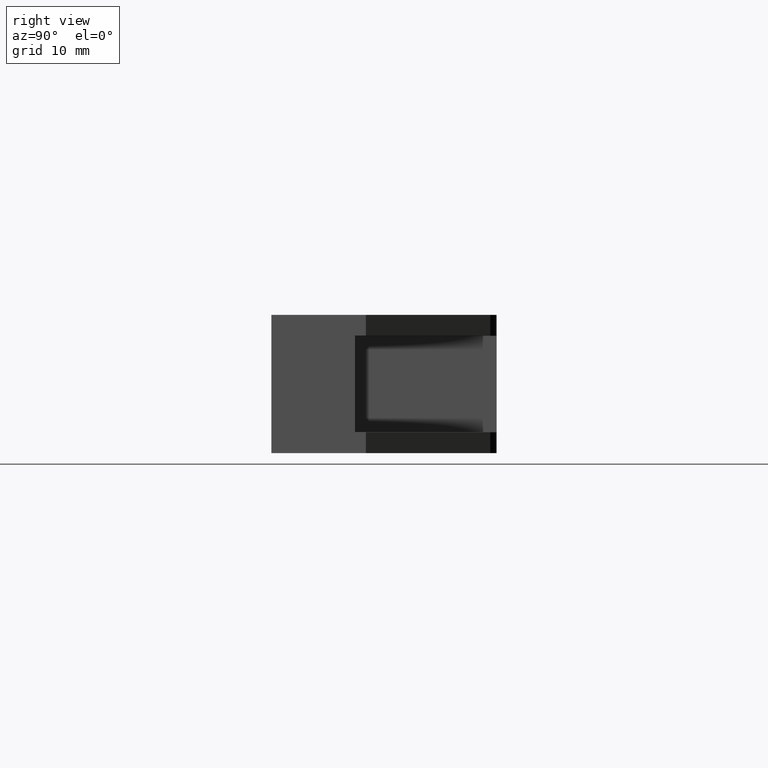
[diagram: clean part render]
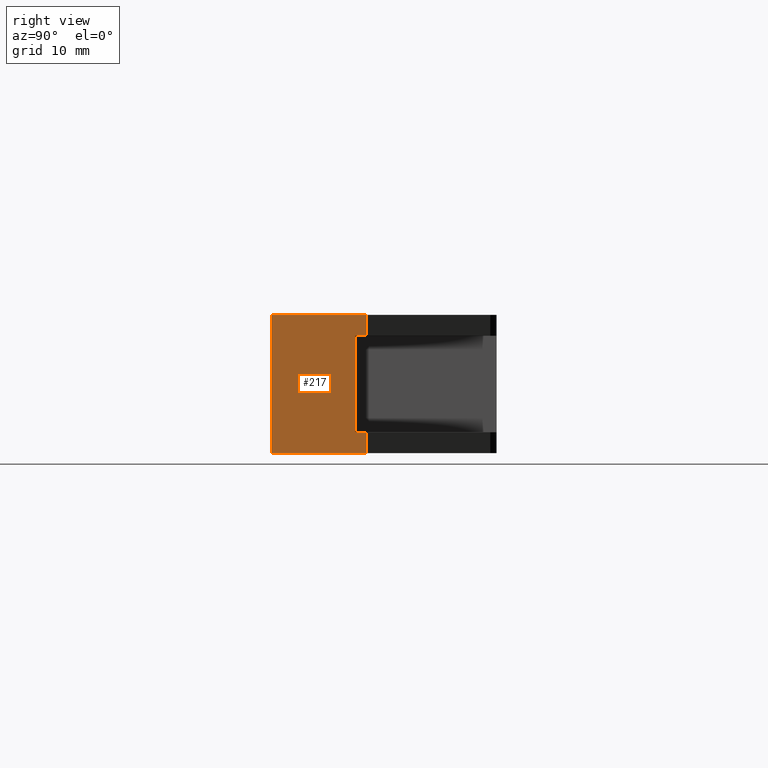
[diagram: same view with one face highlighted and labeled with its STEP entity id]
A machine part, right view. The second image highlights one B-rep face of the part: STEP entity #217.
In plain terms, the highlighted planar face has unit normal (-1, 0, 0).
Its self-contained STEP definition (entity closure, byte-faithful):
#191 = AXIS2_PLACEMENT_3D ( 'NONE', #474, #473, #472 ) ;
#217 = ADVANCED_FACE ( 'NONE', ( #540 ), #476, .F. ) ;
#230 = EDGE_CURVE ( 'NONE', #1214, #1191, #851, .T. ) ;
#279 = DIRECTION ( 'NONE',  ( -0.0000000000000000000, -0.0000000000000000000, 1.000000000000000000 ) ) ;
#280 = CARTESIAN_POINT ( 'NONE',  ( 107.0000000000000000, 0.0000000000000000000, -10.75000000000000000 ) ) ;
#281 = DIRECTION ( 'NONE',  ( -0.0000000000000000000, -1.000000000000000000, -0.0000000000000000000 ) ) ;
#282 = CARTESIAN_POINT ( 'NONE',  ( 107.0000000000000000, 17.50000000000000000, -21.50000000000000000 ) ) ;
#283 = DIRECTION ( 'NONE',  ( -0.0000000000000000000, -1.000000000000000000, -0.0000000000000000000 ) ) ;
#307 = EDGE_CURVE ( 'NONE', #1186, #1189, #969, .T. ) ;
#317 = EDGE_CURVE ( 'NONE', #1183, #1186, #785, .T. ) ;
#356 = DIRECTION ( 'NONE',  ( -0.0000000000000000000, -0.0000000000000000000, -1.000000000000000000 ) ) ;
#357 = DIRECTION ( 'NONE',  ( 0.0000000000000000000, 1.000000000000000000, 0.0000000000000000000 ) ) ;
#358 = CARTESIAN_POINT ( 'NONE',  ( 107.0000000000000100, 7.346153846000000900, -18.24999999350000500 ) ) ;
#359 = CARTESIAN_POINT ( 'NONE',  ( 107.0000000000000000, 14.69230769200000000, -10.75000000000000000 ) ) ;
#372 = CARTESIAN_POINT ( 'NONE',  ( 107.0000000000000000, 17.50000000000000000, 0.0000000000000000000 ) ) ;
#375 = DIRECTION ( 'NONE',  ( 0.0000000000000000000, 0.0000000000000000000, 1.000000000000000000 ) ) ;
#376 = CARTESIAN_POINT ( 'NONE',  ( 107.0000000000000000, 14.69230769200000000, -1.625000000000000200 ) ) ;
#384 = DIRECTION ( 'NONE',  ( -0.0000000000000000000, -0.0000000000000000000, -1.000000000000000000 ) ) ;
#385 = CARTESIAN_POINT ( 'NONE',  ( 107.0000000000000000, 13.00000000080467400, -10.75000000000000200 ) ) ;
#420 = DIRECTION ( 'NONE',  ( -0.0000000000000000000, -1.000000000000000000, -0.0000000000000000000 ) ) ;
#421 = CARTESIAN_POINT ( 'NONE',  ( 107.0000000000000100, 7.346153846000000000, -3.250000006499999600 ) ) ;
#472 = DIRECTION ( 'NONE',  ( 0.0000000000000000000, 0.0000000000000000000, 1.000000000000000000 ) ) ;
#473 = DIRECTION ( 'NONE',  ( -1.000000000000000000, 0.0000000000000000000, 0.0000000000000000000 ) ) ;
#474 = CARTESIAN_POINT ( 'NONE',  ( 107.0000000000000000, 0.0000000000000000000, -21.50000000000000000 ) ) ;
#476 = PLANE ( 'NONE',  #191 ) ;
#540 = FACE_OUTER_BOUND ( 'NONE', #624, .T. ) ;
#624 = EDGE_LOOP ( 'NONE', ( #787, #786, #777, #774, #773, #771, #770, #769 ) ) ;
#769 = ORIENTED_EDGE ( 'NONE', *, *, #317, .F. ) ;
#770 = ORIENTED_EDGE ( 'NONE', *, *, #307, .F. ) ;
#771 = ORIENTED_EDGE ( 'NONE', *, *, #1162, .F. ) ;
#773 = ORIENTED_EDGE ( 'NONE', *, *, #1163, .F. ) ;
#774 = ORIENTED_EDGE ( 'NONE', *, *, #1161, .T. ) ;
#777 = ORIENTED_EDGE ( 'NONE', *, *, #1160, .T. ) ;
#778 = LINE ( 'NONE', #282, #891 ) ;
#779 = LINE ( 'NONE', #385, #781 ) ;
#781 = VECTOR ( 'NONE', #384, 1000.000000000000000 ) ;
#785 = LINE ( 'NONE', #358, #789 ) ;
#786 = ORIENTED_EDGE ( 'NONE', *, *, #230, .F. ) ;
#787 = ORIENTED_EDGE ( 'NONE', *, *, #1157, .F. ) ;
#789 = VECTOR ( 'NONE', #357, 1000.000000000000000 ) ;
#843 = LINE ( 'NONE', #376, #845 ) ;
#845 = VECTOR ( 'NONE', #375, 1000.000000000000000 ) ;
#850 = VECTOR ( 'NONE', #420, 1000.000000000000000 ) ;
#851 = LINE ( 'NONE', #421, #850 ) ;
#855 = LINE ( 'NONE', #372, #856 ) ;
#856 = VECTOR ( 'NONE', #283, 1000.000000000000000 ) ;
#889 = VECTOR ( 'NONE', #279, 1000.000000000000000 ) ;
#890 = LINE ( 'NONE', #280, #889 ) ;
#891 = VECTOR ( 'NONE', #281, 1000.000000000000000 ) ;
#969 = LINE ( 'NONE', #359, #970 ) ;
#970 = VECTOR ( 'NONE', #356, 1000.000000000000000 ) ;
#1000 = CARTESIAN_POINT ( 'NONE',  ( 107.0000000000000000, 14.69230769200000200, 0.0000000000000000000 ) ) ;
#1030 = CARTESIAN_POINT ( 'NONE',  ( 107.0000000000000000, 13.00000000033528000, -18.24999999729167000 ) ) ;
#1033 = CARTESIAN_POINT ( 'NONE',  ( 107.0000000000000000, 14.69230769322700600, -18.24999999566666600 ) ) ;
#1036 = CARTESIAN_POINT ( 'NONE',  ( 107.0000000000000000, 14.69230769600000000, -21.50000000000000000 ) ) ;
#1038 = CARTESIAN_POINT ( 'NONE',  ( 107.0000000000000300, 13.00000000053644900, -3.250000004333332800 ) ) ;
#1044 = CARTESIAN_POINT ( 'NONE',  ( 107.0000000000000000, 0.0000000000000000000, -21.50000000000000000 ) ) ;
#1061 = CARTESIAN_POINT ( 'NONE',  ( 107.0000000000000000, 14.69230769200000000, -3.250000002166666800 ) ) ;
#1062 = CARTESIAN_POINT ( 'NONE',  ( 107.0000000000000000, 0.0000000000000000000, 0.0000000000000000000 ) ) ;
#1157 = EDGE_CURVE ( 'NONE', #1191, #1183, #779, .T. ) ;
#1160 = EDGE_CURVE ( 'NONE', #1214, #1164, #843, .T. ) ;
#1161 = EDGE_CURVE ( 'NONE', #1164, #1215, #855, .T. ) ;
#1162 = EDGE_CURVE ( 'NONE', #1189, #1197, #778, .T. ) ;
#1163 = EDGE_CURVE ( 'NONE', #1197, #1215, #890, .T. ) ;
#1164 = VERTEX_POINT ( 'NONE', #1000 ) ;
#1183 = VERTEX_POINT ( 'NONE', #1030 ) ;
#1186 = VERTEX_POINT ( 'NONE', #1033 ) ;
#1189 = VERTEX_POINT ( 'NONE', #1036 ) ;
#1191 = VERTEX_POINT ( 'NONE', #1038 ) ;
#1197 = VERTEX_POINT ( 'NONE', #1044 ) ;
#1214 = VERTEX_POINT ( 'NONE', #1061 ) ;
#1215 = VERTEX_POINT ( 'NONE', #1062 ) ;